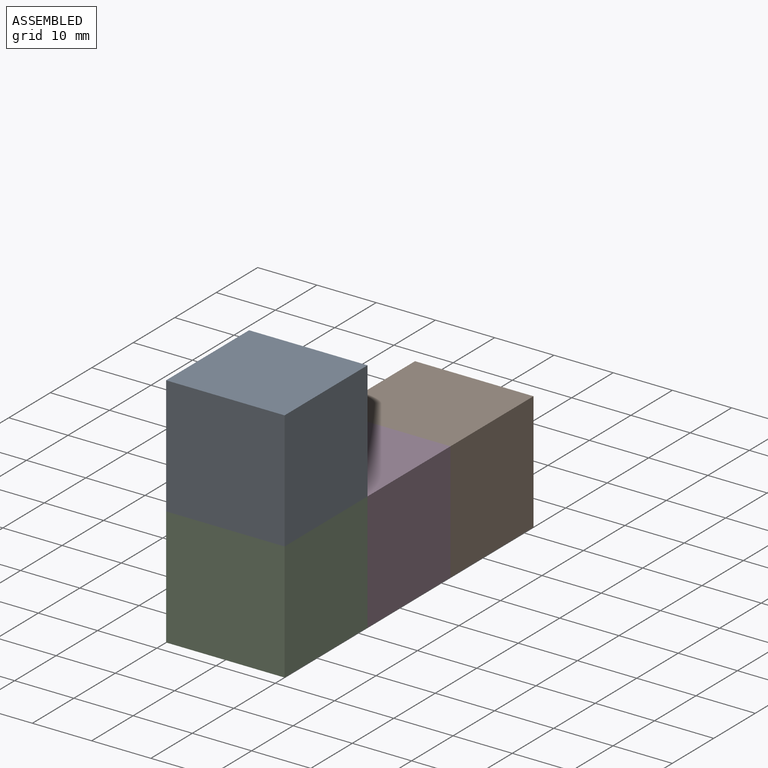
[diagram: assembled view]
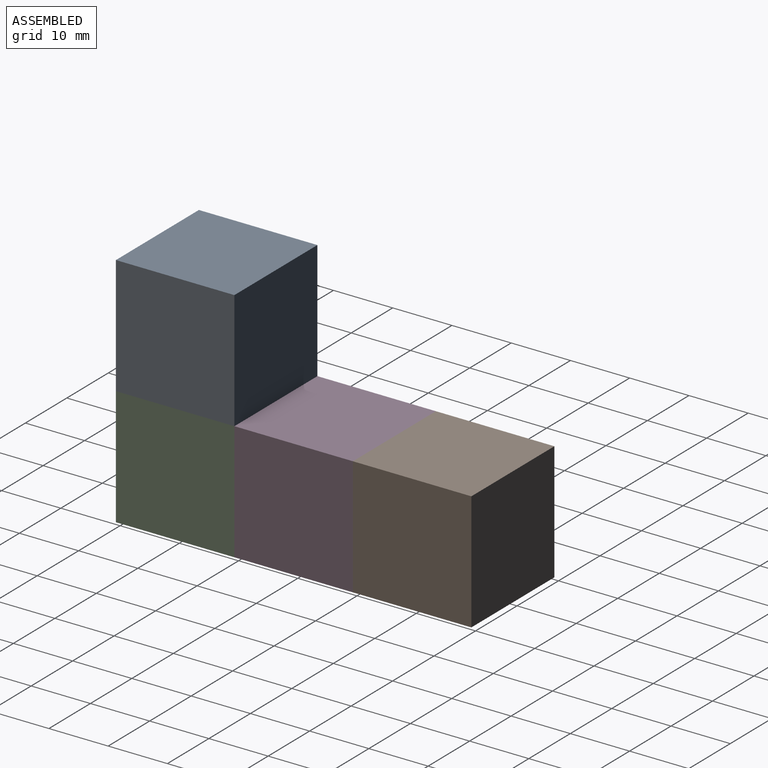
[diagram: assembled view, second angle]
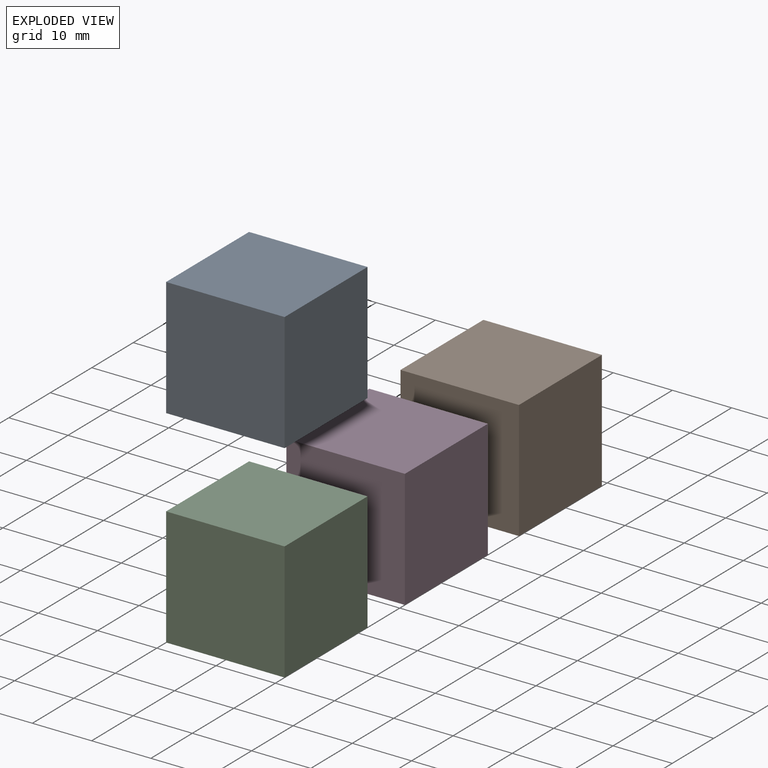
[diagram: exploded view]
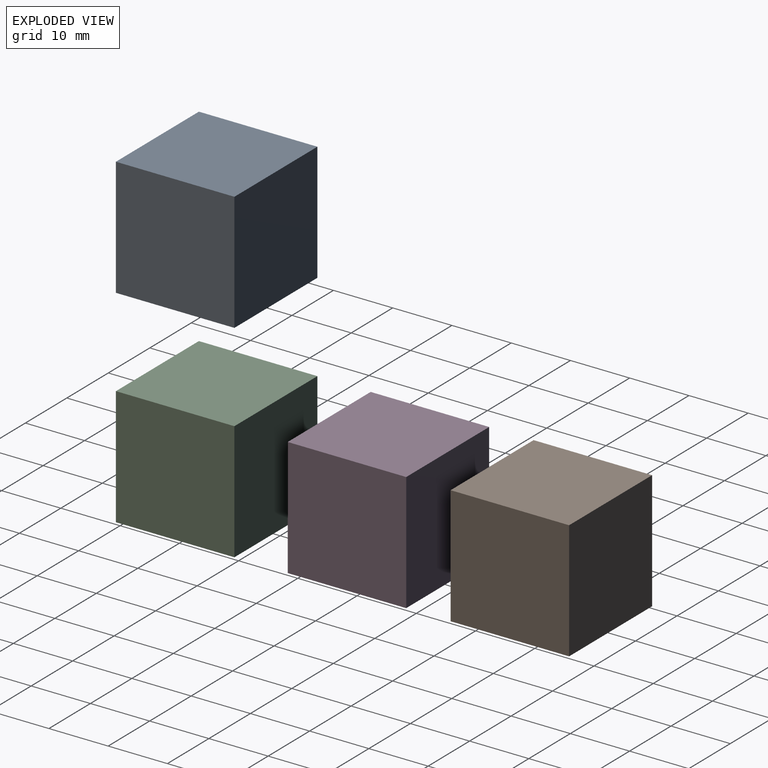
[diagram: exploded view, second angle]
ASSEMBLY  parts=4 mates=3
PART A: 6 faces, bbox 20x20x20 mm
  f0: plane 20x20mm, normal (-1,0,0), area 400mm2, adj f1,f3,f4,f5
  f1: plane 20x20mm, normal (0,-1,0), area 400mm2, adj f0,f2,f4,f5
  f2: plane 20x20mm, normal (1,0,0), area 400mm2, adj f1,f3,f4,f5
  f3: plane 20x20mm, normal (0,1,0), area 400mm2, adj f0,f2,f4,f5
  f4: plane 20x20mm, normal (0,0,1), area 400mm2, adj f0,f1,f2,f3
  f5: plane 20x20mm, normal (0,0,-1), area 400mm2, adj f0,f1,f2,f3
PART B: same geometry as A
PART C: same geometry as A
PART D: same geometry as A
PLACE A t=(-8.62,-59.73,-2.13)mm
PLACE B t=(-8.62,-19.73,-22.13)mm
PLACE C t=(-8.62,-59.73,-22.13)mm
PLACE D t=(-8.62,-39.73,-22.13)mm
MATE fastened D.f3 <-> B.f1  axis (0,1,0) through (1.38,-19.73,-12.13)mm
MATE fastened D.f1 <-> C.f3  axis (0,-1,0) through (1.38,-39.73,-12.13)mm
MATE fastened A.f5 <-> C.f4  axis (0,0,-1) through (1.38,-49.73,-2.13)mm
